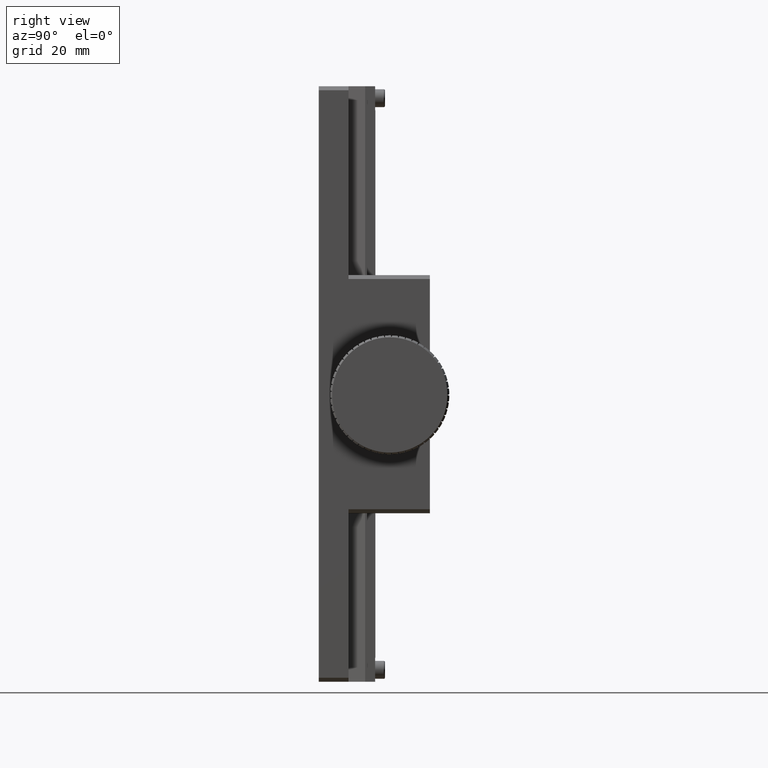
[diagram: clean part render]
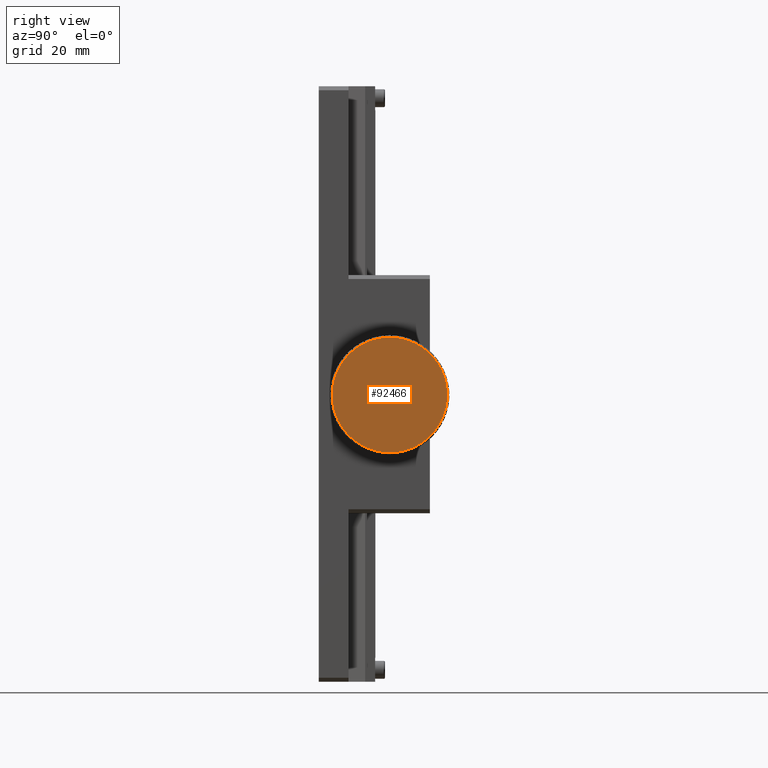
[diagram: same view with one face highlighted and labeled with its STEP entity id]
A machine part, right view. The second image highlights one B-rep face of the part: STEP entity #92466.
In plain terms, the highlighted planar face has unit normal (-1, -0, 0).
Its self-contained STEP definition (entity closure, byte-faithful):
#193 = EDGE_CURVE ( 'NONE', #52795, #45474, #45279, .T. ) ;
#510 = ORIENTED_EDGE ( 'NONE', *, *, #92651, .F. ) ;
#661 = VERTEX_POINT ( 'NONE', #71348 ) ;
#867 = CARTESIAN_POINT ( 'NONE',  ( 126.9015696099424986, 75.00408794080404107, 86.06019698115960637 ) ) ;
#907 = DIRECTION ( 'NONE',  ( 7.273874988923453722E-14, -1.000000000000000000, 0.000000000000000000 ) ) ;
#978 = CARTESIAN_POINT ( 'NONE',  ( 126.9015696099424986, 75.00408794080404107, 86.06019698115960637 ) ) ;
#1144 = DIRECTION ( 'NONE',  ( 7.273874988923453722E-14, -1.000000000000000000, 0.000000000000000000 ) ) ;
#1243 = CIRCLE ( 'NONE', #74801, 14.49999999999997158 ) ;
#1318 = VERTEX_POINT ( 'NONE', #21491 ) ;
#1338 = CARTESIAN_POINT ( 'NONE',  ( 126.9015696099435075, 60.73274456056395820, 88.62510597043701921 ) ) ;
#1516 = CIRCLE ( 'NONE', #48818, 14.49999999999997158 ) ;
#1670 = EDGE_CURVE ( 'NONE', #61378, #48436, #64917, .T. ) ;
#1704 = CIRCLE ( 'NONE', #58854, 14.49999999999997158 ) ;
#1720 = CIRCLE ( 'NONE', #14793, 14.49999999999997158 ) ;
#2405 = ORIENTED_EDGE ( 'NONE', *, *, #193, .F. ) ;
#2424 = VERTEX_POINT ( 'NONE', #4015 ) ;
#2754 = CARTESIAN_POINT ( 'NONE',  ( 126.9015696099424986, 75.00408794080404107, 86.06019698115960637 ) ) ;
#3019 = VERTEX_POINT ( 'NONE', #18303 ) ;
#3436 = ORIENTED_EDGE ( 'NONE', *, *, #40751, .F. ) ;
#3703 = DIRECTION ( 'NONE',  ( 7.273874988923453722E-14, -1.000000000000000000, 0.000000000000000000 ) ) ;
#4015 = CARTESIAN_POINT ( 'NONE',  ( 126.9015696099434507, 61.73447649078026700, 80.21490725648408215 ) ) ;
#4052 = DIRECTION ( 'NONE',  ( -1.000000000000000000, -7.352900312643177199E-14, -8.006336293077123270E-16 ) ) ;
#4778 = EDGE_CURVE ( 'NONE', #97226, #7969, #1243, .T. ) ;
#5010 = CIRCLE ( 'NONE', #73636, 14.49999999999997158 ) ;
#5792 = CARTESIAN_POINT ( 'NONE',  ( 126.9015696099424986, 75.00408794080404107, 86.06019698115960637 ) ) ;
#5985 = CARTESIAN_POINT ( 'NONE',  ( 126.9015696099415038, 88.59667302724882632, 91.10912069495819310 ) ) ;
#6388 = EDGE_CURVE ( 'NONE', #1318, #31271, #40537, .T. ) ;
#6516 = DIRECTION ( 'NONE',  ( -1.000000000000000000, -7.352900312643177199E-14, -8.006336293077123270E-16 ) ) ;
#6702 = DIRECTION ( 'NONE',  ( 7.273874988923453722E-14, -1.000000000000000000, 0.000000000000000000 ) ) ;
#6707 = VERTEX_POINT ( 'NONE', #11895 ) ;
#6991 = VERTEX_POINT ( 'NONE', #80958 ) ;
#7065 = VERTEX_POINT ( 'NONE', #16805 ) ;
#7330 = VERTEX_POINT ( 'NONE', #40332 ) ;
#7509 = CARTESIAN_POINT ( 'NONE',  ( 126.9015696099430670, 67.26364896031455487, 73.79905493038317843 ) ) ;
#7656 = DIRECTION ( 'NONE',  ( 7.273874988923453722E-14, -1.000000000000000000, 0.000000000000000000 ) ) ;
#7842 = ORIENTED_EDGE ( 'NONE', *, *, #67165, .F. ) ;
#7909 = CIRCLE ( 'NONE', #70002, 14.49999999999997158 ) ;
#7969 = VERTEX_POINT ( 'NONE', #95056 ) ;
#8281 = CARTESIAN_POINT ( 'NONE',  ( 126.9015696099414754, 88.59667302724875526, 81.01127326736082068 ) ) ;
#8737 = VERTEX_POINT ( 'NONE', #38182 ) ;
#8753 = CARTESIAN_POINT ( 'NONE',  ( 126.9015696099424986, 75.00408794080404107, 86.06019698115960637 ) ) ;
#8937 = DIRECTION ( 'NONE',  ( -1.000000000000000000, -7.352900312643177199E-14, -8.006336293077123270E-16 ) ) ;
#9279 = DIRECTION ( 'NONE',  ( -1.000000000000000000, -7.352900312643177199E-14, -8.006336293077123270E-16 ) ) ;
#9822 = DIRECTION ( 'NONE',  ( 7.273874988923453722E-14, -1.000000000000000000, 0.000000000000000000 ) ) ;
#9997 = VERTEX_POINT ( 'NONE', #19188 ) ;
#10054 = AXIS2_PLACEMENT_3D ( 'NONE', #34337, #72708, #9822 ) ;
#10268 = ORIENTED_EDGE ( 'NONE', *, *, #79614, .F. ) ;
#10315 = CARTESIAN_POINT ( 'NONE',  ( 126.9015696099424986, 75.00408794080404107, 86.06019698115960637 ) ) ;
#11147 = AXIS2_PLACEMENT_3D ( 'NONE', #35404, #98319, #99821 ) ;
#11201 = CIRCLE ( 'NONE', #25876, 14.49999999999997158 ) ;
#11298 = CIRCLE ( 'NONE', #97884, 14.49999999999997158 ) ;
#11606 = ORIENTED_EDGE ( 'NONE', *, *, #42304, .F. ) ;
#11895 = CARTESIAN_POINT ( 'NONE',  ( 126.9015696099420580, 80.45358788146064910, 99.49719628892108858 ) ) ;
#11950 = EDGE_CURVE ( 'NONE', #2424, #65854, #61911, .T. ) ;
#11973 = DIRECTION ( 'NONE',  ( 7.273874988923453722E-14, -1.000000000000000000, 0.000000000000000000 ) ) ;
#12282 = VERTEX_POINT ( 'NONE', #34123 ) ;
#12550 = VERTEX_POINT ( 'NONE', #49477 ) ;
#12693 = CIRCLE ( 'NONE', #58439, 14.49999999999997158 ) ;
#13099 = CIRCLE ( 'NONE', #49027, 14.49999999999997158 ) ;
#13114 = CIRCLE ( 'NONE', #19598, 14.49999999999997158 ) ;
#13170 = VERTEX_POINT ( 'NONE', #44332 ) ;
#13204 = CARTESIAN_POINT ( 'NONE',  ( 126.9015696099429249, 68.76814250779445103, 72.96962844665638670 ) ) ;
#13733 = CARTESIAN_POINT ( 'NONE',  ( 126.9015696099424986, 75.00408794080404107, 86.06019698115960637 ) ) ;
#14032 = EDGE_LOOP ( 'NONE', ( #48640, #42822, #32281, #41952, #89766, #48990, #24390, #92745, #7842, #60675, #33118, #14178, #67562, #56789, #60704, #20184, #27661, #36646, #55384, #92422, #26438, #100431, #97297, #65824, #64467, #95186, #91907, #45214, #80987, #37907, #98932, #77314, #98589, #64303, #42473, #89646, #3436, #96733, #46701, #510, #23189, #94944, #85976, #64125, #42848, #2405, #10268, #19664, #90590, #54129, #11606, #14858, #42799 ) ) ;
#14178 = ORIENTED_EDGE ( 'NONE', *, *, #65213, .F. ) ;
#14420 = AXIS2_PLACEMENT_3D ( 'NONE', #18939, #32805, #33302 ) ;
#14707 = AXIS2_PLACEMENT_3D ( 'NONE', #34489, #66685, #11973 ) ;
#14773 = AXIS2_PLACEMENT_3D ( 'NONE', #80539, #59022, #90229 ) ;
#14793 = AXIS2_PLACEMENT_3D ( 'NONE', #38715, #93449, #99106 ) ;
#14858 = ORIENTED_EDGE ( 'NONE', *, *, #97150, .F. ) ;
#15110 = DIRECTION ( 'NONE',  ( -1.000000000000000000, -7.352900312643177199E-14, -8.006336293077123270E-16 ) ) ;
#15136 = CARTESIAN_POINT ( 'NONE',  ( 126.9015696099424986, 75.00408794080404107, 86.06019698115960637 ) ) ;
#15390 = VERTEX_POINT ( 'NONE', #56483 ) ;
#15392 = EDGE_CURVE ( 'NONE', #3019, #23690, #19577, .T. ) ;
#15998 = EDGE_CURVE ( 'NONE', #13170, #59314, #58787, .T. ) ;
#16106 = CARTESIAN_POINT ( 'NONE',  ( 126.9015696099424986, 75.00408794080404107, 86.06019698115960637 ) ) ;
#16333 = EDGE_CURVE ( 'NONE', #83098, #77814, #40913, .T. ) ;
#16402 = AXIS2_PLACEMENT_3D ( 'NONE', #15136, #48342, #38144 ) ;
#16551 = EDGE_CURVE ( 'NONE', #6707, #83098, #13099, .T. ) ;
#16616 = CARTESIAN_POINT ( 'NONE',  ( 126.9015696099424986, 75.00408794080404107, 86.06019698115960637 ) ) ;
#16805 = CARTESIAN_POINT ( 'NONE',  ( 126.9015696099428112, 70.36017505979285147, 72.32396485027388167 ) ) ;
#17334 = DIRECTION ( 'NONE',  ( -1.000000000000000000, -7.352900312643177199E-14, -8.006336293077123270E-16 ) ) ;
#17603 = DIRECTION ( 'NONE',  ( -1.000000000000000000, -7.352900312643177199E-14, -8.006336293077123270E-16 ) ) ;
#17610 = CARTESIAN_POINT ( 'NONE',  ( 126.9015696099424986, 75.00408794080404107, 86.06019698115960637 ) ) ;
#17795 = AXIS2_PLACEMENT_3D ( 'NONE', #37699, #30022, #18605 ) ;
#17945 = CIRCLE ( 'NONE', #75065, 14.49999999999997158 ) ;
#17947 = CARTESIAN_POINT ( 'NONE',  ( 126.9015696099424986, 75.00408794080404107, 86.06019698115960637 ) ) ;
#18204 = CARTESIAN_POINT ( 'NONE',  ( 126.9015696099424986, 75.00408794080404107, 86.06019698115960637 ) ) ;
#18303 = CARTESIAN_POINT ( 'NONE',  ( 126.9015696099433086, 63.47869854031039694, 77.26159486679010513 ) ) ;
#18310 = EDGE_CURVE ( 'NONE', #70768, #85833, #37603, .T. ) ;
#18605 = DIRECTION ( 'NONE',  ( 7.273874988923453722E-14, -1.000000000000000000, 0.000000000000000000 ) ) ;
#18720 = EDGE_CURVE ( 'NONE', #6991, #30249, #1704, .T. ) ;
#18939 = CARTESIAN_POINT ( 'NONE',  ( 126.9015696099424986, 75.00408794080404107, 86.06019698115960637 ) ) ;
#19031 = CARTESIAN_POINT ( 'NONE',  ( 126.9015696099424986, 75.00408794080404107, 86.06019698115960637 ) ) ;
#19188 = CARTESIAN_POINT ( 'NONE',  ( 126.9015696099413901, 89.50408794080401265, 86.06019698115960637 ) ) ;
#19342 = CARTESIAN_POINT ( 'NONE',  ( 126.9015696099423138, 77.14496311883998203, 71.71911426498826359 ) ) ;
#19365 = AXIS2_PLACEMENT_3D ( 'NONE', #40669, #95384, #42684 ) ;
#19474 = DIRECTION ( 'NONE',  ( -1.000000000000000000, -7.352900312643177199E-14, -8.006336293077123270E-16 ) ) ;
#19577 = CIRCLE ( 'NONE', #86543, 14.49999999999997158 ) ;
#19598 = AXIS2_PLACEMENT_3D ( 'NONE', #50102, #71643, #32773 ) ;
#19664 = ORIENTED_EDGE ( 'NONE', *, *, #15998, .F. ) ;
#20079 = CARTESIAN_POINT ( 'NONE',  ( 126.9015696099424986, 75.00408794080404107, 86.06019698115960637 ) ) ;
#20133 = EDGE_CURVE ( 'NONE', #50634, #9997, #78282, .T. ) ;
#20184 = ORIENTED_EDGE ( 'NONE', *, *, #93495, .F. ) ;
#20683 = VERTEX_POINT ( 'NONE', #43043 ) ;
#21491 = CARTESIAN_POINT ( 'NONE',  ( 126.9015696099435360, 60.52955383022141689, 86.91918608561854853 ) ) ;
#21629 = CARTESIAN_POINT ( 'NONE',  ( 126.9015696099415891, 87.03047037983192524, 77.95981887700665425 ) ) ;
#21886 = DIRECTION ( 'NONE',  ( -1.000000000000000000, -7.352900312643177199E-14, -8.006336293077123270E-16 ) ) ;
#22467 = DIRECTION ( 'NONE',  ( 7.273874988923453722E-14, -1.000000000000000000, 0.000000000000000000 ) ) ;
#22542 = DIRECTION ( 'NONE',  ( -1.000000000000000000, -7.352900312643177199E-14, -8.006336293077123270E-16 ) ) ;
#22652 = CIRCLE ( 'NONE', #37338, 14.49999999999997158 ) ;
#23060 = DIRECTION ( 'NONE',  ( -1.000000000000000000, -7.352900312643177199E-14, -8.006336293077123270E-16 ) ) ;
#23081 = DIRECTION ( 'NONE',  ( 7.273874988923453722E-14, -1.000000000000000000, 0.000000000000000000 ) ) ;
#23189 = ORIENTED_EDGE ( 'NONE', *, *, #76497, .F. ) ;
#23690 = VERTEX_POINT ( 'NONE', #95729 ) ;
#23991 = CARTESIAN_POINT ( 'NONE',  ( 126.9015696099418449, 83.45729038796400800, 97.84125671224184373 ) ) ;
#24390 = ORIENTED_EDGE ( 'NONE', *, *, #61987, .F. ) ;
#24527 = CARTESIAN_POINT ( 'NONE',  ( 126.9015696099424986, 75.00408794080404107, 86.06019698115960637 ) ) ;
#24548 = AXIS2_PLACEMENT_3D ( 'NONE', #61737, #60742, #91947 ) ;
#24689 = CIRCLE ( 'NONE', #10054, 14.49999999999997158 ) ;
#25067 = DIRECTION ( 'NONE',  ( -1.000000000000000000, -7.352900312643177199E-14, -8.006336293077123270E-16 ) ) ;
#25134 = EDGE_CURVE ( 'NONE', #38671, #13170, #37517, .T. ) ;
#25250 = EDGE_CURVE ( 'NONE', #12282, #7065, #62048, .T. ) ;
#25411 = AXIS2_PLACEMENT_3D ( 'NONE', #867, #38222, #94452 ) ;
#25502 = DIRECTION ( 'NONE',  ( 7.273874988923453722E-14, -1.000000000000000000, 0.000000000000000000 ) ) ;
#25571 = DIRECTION ( 'NONE',  ( 7.273874988923453722E-14, -1.000000000000000000, 0.000000000000000000 ) ) ;
#25876 = AXIS2_PLACEMENT_3D ( 'NONE', #18204, #96934, #72929 ) ;
#25970 = CIRCLE ( 'NONE', #71708, 14.49999999999997158 ) ;
#26030 = AXIS2_PLACEMENT_3D ( 'NONE', #29417, #49557, #42890 ) ;
#26100 = CARTESIAN_POINT ( 'NONE',  ( 126.9015696099424986, 75.00408794080404107, 86.06019698115960637 ) ) ;
#26438 = ORIENTED_EDGE ( 'NONE', *, *, #100206, .F. ) ;
#26516 = CARTESIAN_POINT ( 'NONE',  ( 126.9015696099424986, 75.00408794080404107, 86.06019698115960637 ) ) ;
#26706 = DIRECTION ( 'NONE',  ( -1.000000000000000000, -7.352900312643177199E-14, -8.006336293077123270E-16 ) ) ;
#26834 = VERTEX_POINT ( 'NONE', #59566 ) ;
#26962 = DIRECTION ( 'NONE',  ( 7.273874988923453722E-14, -1.000000000000000000, 0.000000000000000000 ) ) ;
#27502 = CARTESIAN_POINT ( 'NONE',  ( 126.9015696099432233, 64.60023271366122799, 75.96020705974622445 ) ) ;
#27661 = ORIENTED_EDGE ( 'NONE', *, *, #29664, .F. ) ;
#27702 = CIRCLE ( 'NONE', #60500, 14.49999999999997158 ) ;
#27848 = DIRECTION ( 'NONE',  ( -1.000000000000000000, -7.352900312643177199E-14, -8.006336293077123270E-16 ) ) ;
#28389 = EDGE_CURVE ( 'NONE', #63061, #49968, #55218, .T. ) ;
#28420 = DIRECTION ( 'NONE',  ( -1.000000000000000000, -7.352900312643177199E-14, -8.006336293077123270E-16 ) ) ;
#28581 = CARTESIAN_POINT ( 'NONE',  ( 126.9015696099416459, 85.98800095214762962, 95.52611769492202143 ) ) ;
#28776 = AXIS2_PLACEMENT_3D ( 'NONE', #13733, #21886, #59263 ) ;
#28954 = EDGE_CURVE ( 'NONE', #20683, #54604, #73203, .T. ) ;
#29094 = AXIS2_PLACEMENT_3D ( 'NONE', #8753, #93160, #23081 ) ;
#29157 = CARTESIAN_POINT ( 'NONE',  ( 126.9015696099417880, 84.79134146281820961, 96.75877952726449394 ) ) ;
#29417 = CARTESIAN_POINT ( 'NONE',  ( 126.9015696099424702, 75.00408794080402686, 86.06019698115960637 ) ) ;
#29629 = EDGE_CURVE ( 'NONE', #8737, #50634, #89553, .T. ) ;
#29664 = EDGE_CURVE ( 'NONE', #42311, #100860, #53558, .T. ) ;
#30022 = DIRECTION ( 'NONE',  ( -1.000000000000000000, -7.352900312643177199E-14, -8.006336293077123270E-16 ) ) ;
#30249 = VERTEX_POINT ( 'NONE', #5985 ) ;
#30843 = CARTESIAN_POINT ( 'NONE',  ( 126.9015696099419159, 82.00457488039997145, 98.75835364299622654 ) ) ;
#31046 = AXIS2_PLACEMENT_3D ( 'NONE', #24527, #49087, #56235 ) ;
#31271 = VERTEX_POINT ( 'NONE', #1338 ) ;
#31498 = EDGE_CURVE ( 'NONE', #9997, #60272, #11201, .T. ) ;
#31835 = CARTESIAN_POINT ( 'NONE',  ( 126.9015696099428112, 70.36017505979305042, 99.79642911204538791 ) ) ;
#32281 = ORIENTED_EDGE ( 'NONE', *, *, #29629, .F. ) ;
#32773 = DIRECTION ( 'NONE',  ( 7.273874988923453722E-14, -1.000000000000000000, 0.000000000000000000 ) ) ;
#32805 = DIRECTION ( 'NONE',  ( -1.000000000000000000, -7.352900312643177199E-14, -8.006336293077123270E-16 ) ) ;
#32822 = CARTESIAN_POINT ( 'NONE',  ( 126.9015696099424986, 75.00408794080404107, 86.06019698115960637 ) ) ;
#32896 = CARTESIAN_POINT ( 'NONE',  ( 126.9015696099418449, 83.45729038796385169, 74.27913725007722689 ) ) ;
#33118 = ORIENTED_EDGE ( 'NONE', *, *, #16551, .F. ) ;
#33224 = CARTESIAN_POINT ( 'NONE',  ( 126.9015696099424986, 75.00408794080404107, 86.06019698115960637 ) ) ;
#33273 = CARTESIAN_POINT ( 'NONE',  ( 126.9015696099424986, 75.00408794080404107, 86.06019698115960637 ) ) ;
#33302 = DIRECTION ( 'NONE',  ( 7.273874988923453722E-14, -1.000000000000000000, 0.000000000000000000 ) ) ;
#33470 = CARTESIAN_POINT ( 'NONE',  ( 126.9015696099435075, 61.13627366879446612, 81.82537380692355100 ) ) ;
#34123 = CARTESIAN_POINT ( 'NONE',  ( 126.9015696099426691, 72.01739796905806656, 71.87112784281681854 ) ) ;
#34258 = CARTESIAN_POINT ( 'NONE',  ( 126.9015696099424986, 75.00408794080404107, 86.06019698115960637 ) ) ;
#34337 = CARTESIAN_POINT ( 'NONE',  ( 126.9015696099424986, 75.00408794080404107, 86.06019698115960637 ) ) ;
#34399 = VERTEX_POINT ( 'NONE', #84604 ) ;
#34489 = CARTESIAN_POINT ( 'NONE',  ( 126.9015696099424986, 75.00408794080404107, 86.06019698115960637 ) ) ;
#34859 = CARTESIAN_POINT ( 'NONE',  ( 126.9015696099424986, 75.00408794080404107, 86.06019698115960637 ) ) ;
#34978 = EDGE_CURVE ( 'NONE', #45474, #82696, #61636, .T. ) ;
#35404 = CARTESIAN_POINT ( 'NONE',  ( 126.9015696099424986, 75.00408794080404107, 86.06019698115960637 ) ) ;
#35609 = DIRECTION ( 'NONE',  ( -1.000000000000000000, -7.352900312643177199E-14, -8.006336293077123270E-16 ) ) ;
#35981 = AXIS2_PLACEMENT_3D ( 'NONE', #73072, #17334, #25502 ) ;
#36317 = EDGE_CURVE ( 'NONE', #31271, #38269, #37199, .T. ) ;
#36525 = EDGE_CURVE ( 'NONE', #85833, #7330, #74608, .T. ) ;
#36646 = ORIENTED_EDGE ( 'NONE', *, *, #61469, .F. ) ;
#36818 = AXIS2_PLACEMENT_3D ( 'NONE', #10315, #19474, #41506 ) ;
#36974 = CARTESIAN_POINT ( 'NONE',  ( 126.9015696099434791, 61.13627366879453717, 90.29502015539586068 ) ) ;
#36991 = DIRECTION ( 'NONE',  ( -1.000000000000000000, -7.352900312643177199E-14, -8.006336293077123270E-16 ) ) ;
#37199 = CIRCLE ( 'NONE', #50258, 14.49999999999997158 ) ;
#37210 = CARTESIAN_POINT ( 'NONE',  ( 126.9015696099424986, 75.00408794080404107, 86.06019698115960637 ) ) ;
#37338 = AXIS2_PLACEMENT_3D ( 'NONE', #40639, #17603, #87695 ) ;
#37350 = CARTESIAN_POINT ( 'NONE',  ( 126.9015696099424986, 75.00408794080404107, 86.06019698115960637 ) ) ;
#37517 = CIRCLE ( 'NONE', #50598, 14.49999999999997158 ) ;
#37603 = CIRCLE ( 'NONE', #66979, 14.49999999999997158 ) ;
#37699 = CARTESIAN_POINT ( 'NONE',  ( 126.9015696099424986, 75.00408794080404107, 86.06019698115960637 ) ) ;
#37862 = DIRECTION ( 'NONE',  ( -1.000000000000000000, -7.352900312643177199E-14, -8.006336293077123270E-16 ) ) ;
#37907 = ORIENTED_EDGE ( 'NONE', *, *, #84102, .F. ) ;
#38144 = DIRECTION ( 'NONE',  ( 7.273874988923453722E-14, -1.000000000000000000, 0.000000000000000000 ) ) ;
#38182 = CARTESIAN_POINT ( 'NONE',  ( 126.9015696099414185, 89.09842019497001786, 89.46604464498366838 ) ) ;
#38222 = DIRECTION ( 'NONE',  ( -1.000000000000000000, -7.352900312643177199E-14, -8.006336293077123270E-16 ) ) ;
#38269 = VERTEX_POINT ( 'NONE', #36974 ) ;
#38633 = CARTESIAN_POINT ( 'NONE',  ( 126.9015696099413901, 89.40231383300003642, 87.77515795951921973 ) ) ;
#38671 = VERTEX_POINT ( 'NONE', #21629 ) ;
#38715 = CARTESIAN_POINT ( 'NONE',  ( 126.9015696099424986, 75.00408794080404107, 86.06019698115960637 ) ) ;
#39247 = AXIS2_PLACEMENT_3D ( 'NONE', #33273, #25067, #25571 ) ;
#39591 = EDGE_CURVE ( 'NONE', #83704, #96450, #77938, .T. ) ;
#40332 = CARTESIAN_POINT ( 'NONE',  ( 126.9015696099429249, 68.76814250779464999, 99.15076551566291130 ) ) ;
#40537 = CIRCLE ( 'NONE', #81420, 14.49999999999997158 ) ;
#40639 = CARTESIAN_POINT ( 'NONE',  ( 126.9015696099424986, 75.00408794080404107, 86.06019698115960637 ) ) ;
#40669 = CARTESIAN_POINT ( 'NONE',  ( 126.9015696099424986, 75.00408794080404107, 86.06019698115960637 ) ) ;
#40751 = EDGE_CURVE ( 'NONE', #89668, #61540, #55075, .T. ) ;
#40913 = CIRCLE ( 'NONE', #14773, 14.49999999999997158 ) ;
#40961 = CARTESIAN_POINT ( 'NONE',  ( 126.9015696099423991, 75.43377119423132626, 100.5538291105370945 ) ) ;
#41506 = DIRECTION ( 'NONE',  ( 7.273874988923453722E-14, -1.000000000000000000, 0.000000000000000000 ) ) ;
#41563 = DIRECTION ( 'NONE',  ( -1.000000000000000000, -7.352900312643177199E-14, -8.006336293077123270E-16 ) ) ;
#41952 = ORIENTED_EDGE ( 'NONE', *, *, #50181, .F. ) ;
#42176 = CARTESIAN_POINT ( 'NONE',  ( 126.9015696099434791, 61.73447649078035937, 91.90548670583528690 ) ) ;
#42199 = DIRECTION ( 'NONE',  ( 7.273874988923453722E-14, -1.000000000000000000, 0.000000000000000000 ) ) ;
#42304 = EDGE_CURVE ( 'NONE', #76084, #52914, #12693, .T. ) ;
#42311 = VERTEX_POINT ( 'NONE', #31835 ) ;
#42331 = AXIS2_PLACEMENT_3D ( 'NONE', #67807, #28420, #59627 ) ;
#42473 = ORIENTED_EDGE ( 'NONE', *, *, #54083, .F. ) ;
#42684 = DIRECTION ( 'NONE',  ( 7.273874988923453722E-14, -1.000000000000000000, 0.000000000000000000 ) ) ;
#42799 = ORIENTED_EDGE ( 'NONE', *, *, #48293, .F. ) ;
#42822 = ORIENTED_EDGE ( 'NONE', *, *, #20133, .F. ) ;
#42848 = ORIENTED_EDGE ( 'NONE', *, *, #34978, .F. ) ;
#42890 = DIRECTION ( 'NONE',  ( 7.255693219817081362E-14, -1.000000000000000000, 0.000000000000000000 ) ) ;
#43043 = CARTESIAN_POINT ( 'NONE',  ( 126.9015696099425554, 73.71654745862164759, 100.5029196990802376 ) ) ;
#43599 = VERTEX_POINT ( 'NONE', #55535 ) ;
#43617 = DIRECTION ( 'NONE',  ( -1.000000000000000000, -7.352900312643177199E-14, -8.006336293077123270E-16 ) ) ;
#43681 = AXIS2_PLACEMENT_3D ( 'NONE', #16106, #53973, #93838 ) ;
#44133 = DIRECTION ( 'NONE',  ( 7.273874988923453722E-14, -1.000000000000000000, 0.000000000000000000 ) ) ;
#44332 = CARTESIAN_POINT ( 'NONE',  ( 126.9015696099417028, 85.98800095214750172, 76.59427626739704920 ) ) ;
#44891 = DIRECTION ( 'NONE',  ( 7.273874988923453722E-14, -1.000000000000000000, 0.000000000000000000 ) ) ;
#45214 = ORIENTED_EDGE ( 'NONE', *, *, #85732, .F. ) ;
#45279 = CIRCLE ( 'NONE', #43681, 14.49999999999997158 ) ;
#45474 = VERTEX_POINT ( 'NONE', #57202 ) ;
#46125 = CARTESIAN_POINT ( 'NONE',  ( 126.9015696099424986, 75.00408794080404107, 86.06019698115960637 ) ) ;
#46598 = CIRCLE ( 'NONE', #36818, 14.49999999999997158 ) ;
#46701 = ORIENTED_EDGE ( 'NONE', *, *, #25250, .F. ) ;
#47277 = DIRECTION ( 'NONE',  ( 7.273874988923453722E-14, -1.000000000000000000, 0.000000000000000000 ) ) ;
#47552 = DIRECTION ( 'NONE',  ( -1.000000000000000000, -7.352900312643177199E-14, -8.006336293077123270E-16 ) ) ;
#48293 = EDGE_CURVE ( 'NONE', #60272, #661, #24689, .T. ) ;
#48342 = DIRECTION ( 'NONE',  ( -1.000000000000000000, -7.352900312643177199E-14, -8.006336293077123270E-16 ) ) ;
#48436 = VERTEX_POINT ( 'NONE', #56336 ) ;
#48640 = ORIENTED_EDGE ( 'NONE', *, *, #31498, .F. ) ;
#48818 = AXIS2_PLACEMENT_3D ( 'NONE', #75938, #60573, #52890 ) ;
#48990 = ORIENTED_EDGE ( 'NONE', *, *, #68551, .F. ) ;
#49027 = AXIS2_PLACEMENT_3D ( 'NONE', #5792, #36991, #69201 ) ;
#49062 = CIRCLE ( 'NONE', #16402, 14.49999999999997158 ) ;
#49087 = DIRECTION ( 'NONE',  ( -1.000000000000000000, -7.352900312643177199E-14, -8.006336293077123270E-16 ) ) ;
#49477 = CARTESIAN_POINT ( 'NONE',  ( 126.9015696099431381, 65.86781420886919136, 74.80060097174805378 ) ) ;
#49557 = DIRECTION ( 'NONE',  ( -1.000000000000000000, -7.255693219817081362E-14, 3.296481619774128591E-18 ) ) ;
#49736 = DIRECTION ( 'NONE',  ( 7.273874988923453722E-14, -1.000000000000000000, 0.000000000000000000 ) ) ;
#49968 = VERTEX_POINT ( 'NONE', #28581 ) ;
#50102 = CARTESIAN_POINT ( 'NONE',  ( 126.9015696099424986, 75.00408794080404107, 86.06019698115960637 ) ) ;
#50181 = EDGE_CURVE ( 'NONE', #30249, #8737, #73265, .T. ) ;
#50258 = AXIS2_PLACEMENT_3D ( 'NONE', #46125, #77332, #54795 ) ;
#50504 = CIRCLE ( 'NONE', #99488, 14.49999999999997158 ) ;
#50552 = FACE_OUTER_BOUND ( 'NONE', #14032, .T. ) ;
#50598 = AXIS2_PLACEMENT_3D ( 'NONE', #37350, #37862, #7656 ) ;
#50634 = VERTEX_POINT ( 'NONE', #38633 ) ;
#50651 = CIRCLE ( 'NONE', #35981, 14.49999999999997158 ) ;
#50692 = CIRCLE ( 'NONE', #24548, 14.49999999999997158 ) ;
#51021 = EDGE_CURVE ( 'NONE', #7065, #89668, #73343, .T. ) ;
#51245 = VERTEX_POINT ( 'NONE', #42176 ) ;
#51723 = AXIS2_PLACEMENT_3D ( 'NONE', #32822, #9279, #96699 ) ;
#51965 = VERTEX_POINT ( 'NONE', #91754 ) ;
#52474 = DIRECTION ( 'NONE',  ( 7.273874988923453722E-14, -1.000000000000000000, 0.000000000000000000 ) ) ;
#52795 = VERTEX_POINT ( 'NONE', #32896 ) ;
#52890 = DIRECTION ( 'NONE',  ( 7.273874988923453722E-14, -1.000000000000000000, 0.000000000000000000 ) ) ;
#52914 = VERTEX_POINT ( 'NONE', #94770 ) ;
#53558 = CIRCLE ( 'NONE', #71605, 14.49999999999997158 ) ;
#53922 = CIRCLE ( 'NONE', #70293, 14.49999999999997158 ) ;
#53973 = DIRECTION ( 'NONE',  ( -1.000000000000000000, -7.352900312643177199E-14, -8.006336293077123270E-16 ) ) ;
#54083 = EDGE_CURVE ( 'NONE', #12550, #89873, #66841, .T. ) ;
#54129 = ORIENTED_EDGE ( 'NONE', *, *, #81196, .F. ) ;
#54604 = VERTEX_POINT ( 'NONE', #40961 ) ;
#54687 = CARTESIAN_POINT ( 'NONE',  ( 126.9015696099425838, 73.71654745862143443, 71.61747426323898935 ) ) ;
#54795 = DIRECTION ( 'NONE',  ( 7.273874988923453722E-14, -1.000000000000000000, 0.000000000000000000 ) ) ;
#55075 = CIRCLE ( 'NONE', #82851, 14.49999999999997158 ) ;
#55218 = CIRCLE ( 'NONE', #11147, 14.49999999999997158 ) ;
#55357 = DIRECTION ( 'NONE',  ( -1.000000000000000000, -7.352900312643177199E-14, -8.006336293077123270E-16 ) ) ;
#55384 = ORIENTED_EDGE ( 'NONE', *, *, #36525, .F. ) ;
#55535 = CARTESIAN_POINT ( 'NONE',  ( 126.9015696099435075, 60.73274456056389425, 83.49528799188237826 ) ) ;
#55670 = CIRCLE ( 'NONE', #71973, 14.49999999999997158 ) ;
#56170 = CARTESIAN_POINT ( 'NONE',  ( 126.9015696099424986, 75.00408794080404107, 86.06019698115960637 ) ) ;
#56235 = DIRECTION ( 'NONE',  ( 7.273874988923453722E-14, -1.000000000000000000, 0.000000000000000000 ) ) ;
#56336 = CARTESIAN_POINT ( 'NONE',  ( 126.9015696099424559, 75.43377119423111310, 71.56656485178210403 ) ) ;
#56483 = CARTESIAN_POINT ( 'NONE',  ( 126.9015696099422001, 78.82610184880547877, 72.07298104348841150 ) ) ;
#56728 = DIRECTION ( 'NONE',  ( 7.273874988923453722E-14, -1.000000000000000000, 0.000000000000000000 ) ) ;
#56789 = ORIENTED_EDGE ( 'NONE', *, *, #72117, .F. ) ;
#56807 = DIRECTION ( 'NONE',  ( -1.000000000000000000, -7.352900312643177199E-14, -8.006336293077123270E-16 ) ) ;
#56842 = CARTESIAN_POINT ( 'NONE',  ( 126.9015696099422286, 78.82610184880566351, 100.0474129188307302 ) ) ;
#57146 = EDGE_CURVE ( 'NONE', #38269, #51245, #13114, .T. ) ;
#57202 = CARTESIAN_POINT ( 'NONE',  ( 126.9015696099419443, 82.00457488039978671, 73.36204031932287251 ) ) ;
#57332 = EDGE_CURVE ( 'NONE', #15390, #61378, #93112, .T. ) ;
#57808 = DIRECTION ( 'NONE',  ( 7.273874988923453722E-14, -1.000000000000000000, 0.000000000000000000 ) ) ;
#58115 = CARTESIAN_POINT ( 'NONE',  ( 126.9015696099424986, 75.00408794080404107, 86.06019698115960637 ) ) ;
#58337 = AXIS2_PLACEMENT_3D ( 'NONE', #33224, #47552, #56728 ) ;
#58439 = AXIS2_PLACEMENT_3D ( 'NONE', #87086, #55357, #1144 ) ;
#58787 = CIRCLE ( 'NONE', #14707, 14.49999999999997158 ) ;
#58854 = AXIS2_PLACEMENT_3D ( 'NONE', #91355, #15110, #52474 ) ;
#59022 = DIRECTION ( 'NONE',  ( -1.000000000000000000, -7.352900312643177199E-14, -8.006336293077123270E-16 ) ) ;
#59263 = DIRECTION ( 'NONE',  ( 7.273874988923453722E-14, -1.000000000000000000, 0.000000000000000000 ) ) ;
#59314 = VERTEX_POINT ( 'NONE', #84078 ) ;
#59566 = CARTESIAN_POINT ( 'NONE',  ( 126.9015696099435644, 60.52955383022140978, 85.20120787670083473 ) ) ;
#59627 = DIRECTION ( 'NONE',  ( 7.273874988923453722E-14, -1.000000000000000000, 0.000000000000000000 ) ) ;
#60036 = AXIS2_PLACEMENT_3D ( 'NONE', #20079, #43617, #44133 ) ;
#60272 = VERTEX_POINT ( 'NONE', #76844 ) ;
#60500 = AXIS2_PLACEMENT_3D ( 'NONE', #978, #92552, #22467 ) ;
#60573 = DIRECTION ( 'NONE',  ( -1.000000000000000000, -7.352900312643177199E-14, -8.006336293077123270E-16 ) ) ;
#60675 = ORIENTED_EDGE ( 'NONE', *, *, #16333, .F. ) ;
#60704 = ORIENTED_EDGE ( 'NONE', *, *, #28954, .F. ) ;
#60742 = DIRECTION ( 'NONE',  ( -1.000000000000000000, -7.352900312643177199E-14, -8.006336293077123270E-16 ) ) ;
#60897 = DIRECTION ( 'NONE',  ( -1.000000000000000000, -7.352900312643177199E-14, -8.006336293077123270E-16 ) ) ;
#61138 = DIRECTION ( 'NONE',  ( -1.000000000000000000, -7.352900312643177199E-14, -8.006336293077123270E-16 ) ) ;
#61378 = VERTEX_POINT ( 'NONE', #19342 ) ;
#61419 = CARTESIAN_POINT ( 'NONE',  ( 126.9015696099424986, 75.00408794080404107, 86.06019698115960637 ) ) ;
#61469 = EDGE_CURVE ( 'NONE', #7330, #42311, #5010, .T. ) ;
#61535 = CARTESIAN_POINT ( 'NONE',  ( 126.9015696099421149, 80.45358788146045015, 72.62319767339803889 ) ) ;
#61540 = VERTEX_POINT ( 'NONE', #7509 ) ;
#61563 = EDGE_CURVE ( 'NONE', #82696, #15390, #1720, .T. ) ;
#61636 = CIRCLE ( 'NONE', #60036, 14.49999999999997158 ) ;
#61638 = DIRECTION ( 'NONE',  ( 7.273874988923453722E-14, -1.000000000000000000, 0.000000000000000000 ) ) ;
#61737 = CARTESIAN_POINT ( 'NONE',  ( 126.9015696099424986, 75.00408794080404107, 86.06019698115960637 ) ) ;
#61911 = CIRCLE ( 'NONE', #65208, 14.49999999999997158 ) ;
#61987 = EDGE_CURVE ( 'NONE', #49968, #34399, #55670, .T. ) ;
#62048 = CIRCLE ( 'NONE', #31046, 14.49999999999997158 ) ;
#62098 = EDGE_CURVE ( 'NONE', #7969, #51965, #50692, .T. ) ;
#62151 = DIRECTION ( 'NONE',  ( 7.273874988923453722E-14, -1.000000000000000000, 0.000000000000000000 ) ) ;
#62250 = CARTESIAN_POINT ( 'NONE',  ( 126.9015696099424986, 75.00408794080404107, 86.06019698115960637 ) ) ;
#63061 = VERTEX_POINT ( 'NONE', #29157 ) ;
#63694 = CARTESIAN_POINT ( 'NONE',  ( 126.9015696099424986, 75.00408794080404107, 86.06019698115960637 ) ) ;
#63996 = DIRECTION ( 'NONE',  ( 7.273874988923453722E-14, -1.000000000000000000, 0.000000000000000000 ) ) ;
#64125 = ORIENTED_EDGE ( 'NONE', *, *, #61563, .F. ) ;
#64303 = ORIENTED_EDGE ( 'NONE', *, *, #66764, .F. ) ;
#64467 = ORIENTED_EDGE ( 'NONE', *, *, #57146, .F. ) ;
#64574 = CARTESIAN_POINT ( 'NONE',  ( 126.9015696099423138, 77.14496311884016677, 100.4012796973309349 ) ) ;
#64650 = DIRECTION ( 'NONE',  ( 7.273874988923453722E-14, -1.000000000000000000, 0.000000000000000000 ) ) ;
#64917 = CIRCLE ( 'NONE', #58337, 14.49999999999997158 ) ;
#65208 = AXIS2_PLACEMENT_3D ( 'NONE', #72506, #70991, #907 ) ;
#65213 = EDGE_CURVE ( 'NONE', #96450, #6707, #22652, .T. ) ;
#65451 = DIRECTION ( 'NONE',  ( 7.273874988923453722E-14, -1.000000000000000000, 0.000000000000000000 ) ) ;
#65824 = ORIENTED_EDGE ( 'NONE', *, *, #96968, .F. ) ;
#65854 = VERTEX_POINT ( 'NONE', #33470 ) ;
#66685 = DIRECTION ( 'NONE',  ( -1.000000000000000000, -7.352900312643177199E-14, -8.006336293077123270E-16 ) ) ;
#66764 = EDGE_CURVE ( 'NONE', #89873, #3019, #1516, .T. ) ;
#66841 = CIRCLE ( 'NONE', #73491, 14.49999999999997158 ) ;
#66979 = AXIS2_PLACEMENT_3D ( 'NONE', #58115, #35609, #89332 ) ;
#67165 = EDGE_CURVE ( 'NONE', #77814, #63061, #97882, .T. ) ;
#67248 = CARTESIAN_POINT ( 'NONE',  ( 126.9015696099424986, 75.00408794080404107, 86.06019698115960637 ) ) ;
#67562 = ORIENTED_EDGE ( 'NONE', *, *, #39591, .F. ) ;
#67807 = CARTESIAN_POINT ( 'NONE',  ( 126.9015696099424986, 75.00408794080404107, 86.06019698115960637 ) ) ;
#67915 = DIRECTION ( 'NONE',  ( 7.273874988923453722E-14, -1.000000000000000000, 0.000000000000000000 ) ) ;
#68551 = EDGE_CURVE ( 'NONE', #34399, #6991, #86422, .T. ) ;
#69201 = DIRECTION ( 'NONE',  ( 7.273874988923453722E-14, -1.000000000000000000, 0.000000000000000000 ) ) ;
#69349 = DIRECTION ( 'NONE',  ( 7.273874988923453722E-14, -1.000000000000000000, 0.000000000000000000 ) ) ;
#69607 = CARTESIAN_POINT ( 'NONE',  ( 126.9015696099430102, 67.26364896031469698, 98.32133903193613378 ) ) ;
#70002 = AXIS2_PLACEMENT_3D ( 'NONE', #61419, #22542, #84961 ) ;
#70098 = AXIS2_PLACEMENT_3D ( 'NONE', #34859, #60897, #82421 ) ;
#70184 = EDGE_CURVE ( 'NONE', #43599, #26834, #17945, .T. ) ;
#70293 = AXIS2_PLACEMENT_3D ( 'NONE', #63694, #70866, #69349 ) ;
#70768 = VERTEX_POINT ( 'NONE', #99249 ) ;
#70866 = DIRECTION ( 'NONE',  ( -1.000000000000000000, -7.352900312643177199E-14, -8.006336293077123270E-16 ) ) ;
#70991 = DIRECTION ( 'NONE',  ( -1.000000000000000000, -7.352900312643177199E-14, -8.006336293077123270E-16 ) ) ;
#71348 = CARTESIAN_POINT ( 'NONE',  ( 126.9015696099414754, 89.09842019496997523, 82.65434931733534540 ) ) ;
#71605 = AXIS2_PLACEMENT_3D ( 'NONE', #17947, #56807, #63996 ) ;
#71643 = DIRECTION ( 'NONE',  ( -1.000000000000000000, -7.352900312643177199E-14, -8.006336293077123270E-16 ) ) ;
#71708 = AXIS2_PLACEMENT_3D ( 'NONE', #19031, #41563, #49736 ) ;
#71973 = AXIS2_PLACEMENT_3D ( 'NONE', #37210, #99612, #44891 ) ;
#72117 = EDGE_CURVE ( 'NONE', #54604, #83704, #72891, .T. ) ;
#72365 = DIRECTION ( 'NONE',  ( -1.000000000000000000, -7.352900312643177199E-14, -8.006336293077123270E-16 ) ) ;
#72506 = CARTESIAN_POINT ( 'NONE',  ( 126.9015696099424986, 75.00408794080404107, 86.06019698115960637 ) ) ;
#72708 = DIRECTION ( 'NONE',  ( -1.000000000000000000, -7.352900312643177199E-14, -8.006336293077123270E-16 ) ) ;
#72891 = CIRCLE ( 'NONE', #28776, 14.49999999999997158 ) ;
#72929 = DIRECTION ( 'NONE',  ( 7.273874988923453722E-14, -1.000000000000000000, 0.000000000000000000 ) ) ;
#73072 = CARTESIAN_POINT ( 'NONE',  ( 126.9015696099424986, 75.00408794080404107, 86.06019698115960637 ) ) ;
#73203 = CIRCLE ( 'NONE', #29094, 14.49999999999997158 ) ;
#73265 = CIRCLE ( 'NONE', #91308, 14.49999999999997158 ) ;
#73343 = CIRCLE ( 'NONE', #19365, 14.49999999999997158 ) ;
#73491 = AXIS2_PLACEMENT_3D ( 'NONE', #100786, #23060, #6702 ) ;
#73595 = CIRCLE ( 'NONE', #86654, 14.49999999999997158 ) ;
#73636 = AXIS2_PLACEMENT_3D ( 'NONE', #62250, #6516, #67915 ) ;
#74100 = DIRECTION ( 'NONE',  ( -1.000000000000000000, -7.352900312643177199E-14, -8.006336293077123270E-16 ) ) ;
#74608 = CIRCLE ( 'NONE', #51723, 14.49999999999997158 ) ;
#74801 = AXIS2_PLACEMENT_3D ( 'NONE', #67248, #27848, #42199 ) ;
#75065 = AXIS2_PLACEMENT_3D ( 'NONE', #2754, #79005, #64650 ) ;
#75938 = CARTESIAN_POINT ( 'NONE',  ( 126.9015696099424986, 75.00408794080404107, 86.06019698115960637 ) ) ;
#76084 = VERTEX_POINT ( 'NONE', #8281 ) ;
#76497 = EDGE_CURVE ( 'NONE', #48436, #92150, #46598, .T. ) ;
#76844 = CARTESIAN_POINT ( 'NONE',  ( 126.9015696099413901, 89.40231383300000800, 84.34523600279980826 ) ) ;
#77314 = ORIENTED_EDGE ( 'NONE', *, *, #97733, .F. ) ;
#77332 = DIRECTION ( 'NONE',  ( -1.000000000000000000, -7.352900312643177199E-14, -8.006336293077123270E-16 ) ) ;
#77505 = DIRECTION ( 'NONE',  ( 7.273874988923453722E-14, -1.000000000000000000, 0.000000000000000000 ) ) ;
#77814 = VERTEX_POINT ( 'NONE', #23991 ) ;
#77938 = CIRCLE ( 'NONE', #89421, 14.49999999999997158 ) ;
#78282 = CIRCLE ( 'NONE', #70098, 14.49999999999997158 ) ;
#79005 = DIRECTION ( 'NONE',  ( -1.000000000000000000, -7.352900312643177199E-14, -8.006336293077123270E-16 ) ) ;
#79614 = EDGE_CURVE ( 'NONE', #59314, #52795, #98950, .T. ) ;
#79759 = CARTESIAN_POINT ( 'NONE',  ( 126.9015696099433654, 62.51895557017747507, 93.43389820157338477 ) ) ;
#80539 = CARTESIAN_POINT ( 'NONE',  ( 126.9015696099424986, 75.00408794080404107, 86.06019698115960637 ) ) ;
#80958 = CARTESIAN_POINT ( 'NONE',  ( 126.9015696099415038, 87.90411576022793838, 92.68132092336827554 ) ) ;
#80987 = ORIENTED_EDGE ( 'NONE', *, *, #70184, .F. ) ;
#81196 = EDGE_CURVE ( 'NONE', #52914, #38671, #87683, .T. ) ;
#81211 = CARTESIAN_POINT ( 'NONE',  ( 126.9015696099427259, 72.01739796905826552, 100.2492661195024084 ) ) ;
#81420 = AXIS2_PLACEMENT_3D ( 'NONE', #97289, #26706, #3703 ) ;
#82421 = DIRECTION ( 'NONE',  ( 7.273874988923453722E-14, -1.000000000000000000, 0.000000000000000000 ) ) ;
#82696 = VERTEX_POINT ( 'NONE', #61535 ) ;
#82851 = AXIS2_PLACEMENT_3D ( 'NONE', #16616, #8937, #77505 ) ;
#83098 = VERTEX_POINT ( 'NONE', #30843 ) ;
#83679 = CARTESIAN_POINT ( 'NONE',  ( 126.9015696099424986, 75.00408794080404107, 86.06019698115960637 ) ) ;
#83704 = VERTEX_POINT ( 'NONE', #64574 ) ;
#84078 = CARTESIAN_POINT ( 'NONE',  ( 126.9015696099417596, 84.79134146281805329, 75.36161443505454827 ) ) ;
#84102 = EDGE_CURVE ( 'NONE', #65854, #43599, #25970, .T. ) ;
#84604 = CARTESIAN_POINT ( 'NONE',  ( 126.9015696099415607, 87.03047037983205314, 94.16057508531238796 ) ) ;
#84961 = DIRECTION ( 'NONE',  ( 7.273874988923453722E-14, -1.000000000000000000, 0.000000000000000000 ) ) ;
#85732 = EDGE_CURVE ( 'NONE', #26834, #1318, #7909, .T. ) ;
#85833 = VERTEX_POINT ( 'NONE', #69607 ) ;
#85976 = ORIENTED_EDGE ( 'NONE', *, *, #57332, .F. ) ;
#86422 = CIRCLE ( 'NONE', #42331, 14.49999999999997158 ) ;
#86543 = AXIS2_PLACEMENT_3D ( 'NONE', #17610, #72365, #62151 ) ;
#86654 = AXIS2_PLACEMENT_3D ( 'NONE', #56170, #95051, #26962 ) ;
#87086 = CARTESIAN_POINT ( 'NONE',  ( 126.9015696099424986, 75.00408794080404107, 86.06019698115960637 ) ) ;
#87683 = CIRCLE ( 'NONE', #89294, 14.49999999999997158 ) ;
#87695 = DIRECTION ( 'NONE',  ( 7.273874988923453722E-14, -1.000000000000000000, 0.000000000000000000 ) ) ;
#89294 = AXIS2_PLACEMENT_3D ( 'NONE', #26100, #90533, #57808 ) ;
#89332 = DIRECTION ( 'NONE',  ( 7.273874988923453722E-14, -1.000000000000000000, 0.000000000000000000 ) ) ;
#89421 = AXIS2_PLACEMENT_3D ( 'NONE', #83679, #61138, #61638 ) ;
#89553 = CIRCLE ( 'NONE', #14420, 14.49999999999997158 ) ;
#89646 = ORIENTED_EDGE ( 'NONE', *, *, #97586, .F. ) ;
#89668 = VERTEX_POINT ( 'NONE', #13204 ) ;
#89766 = ORIENTED_EDGE ( 'NONE', *, *, #18720, .F. ) ;
#89873 = VERTEX_POINT ( 'NONE', #27502 ) ;
#90229 = DIRECTION ( 'NONE',  ( 7.273874988923453722E-14, -1.000000000000000000, 0.000000000000000000 ) ) ;
#90533 = DIRECTION ( 'NONE',  ( -1.000000000000000000, -7.352900312643177199E-14, -8.006336293077123270E-16 ) ) ;
#90590 = ORIENTED_EDGE ( 'NONE', *, *, #25134, .F. ) ;
#91308 = AXIS2_PLACEMENT_3D ( 'NONE', #34258, #4052, #65451 ) ;
#91355 = CARTESIAN_POINT ( 'NONE',  ( 126.9015696099424986, 75.00408794080404107, 86.06019698115960637 ) ) ;
#91754 = CARTESIAN_POINT ( 'NONE',  ( 126.9015696099431949, 64.60023271366135589, 96.16018690257313040 ) ) ;
#91907 = ORIENTED_EDGE ( 'NONE', *, *, #6388, .F. ) ;
#91947 = DIRECTION ( 'NONE',  ( 7.273874988923453722E-14, -1.000000000000000000, 0.000000000000000000 ) ) ;
#92150 = VERTEX_POINT ( 'NONE', #54687 ) ;
#92422 = ORIENTED_EDGE ( 'NONE', *, *, #18310, .F. ) ;
#92466 = ADVANCED_FACE ( 'NONE', ( #50552 ), #98980, .F. ) ;
#92552 = DIRECTION ( 'NONE',  ( -1.000000000000000000, -7.352900312643177199E-14, -8.006336293077123270E-16 ) ) ;
#92651 = EDGE_CURVE ( 'NONE', #92150, #12282, #50504, .T. ) ;
#92745 = ORIENTED_EDGE ( 'NONE', *, *, #28389, .F. ) ;
#92809 = DIRECTION ( 'NONE',  ( -1.000000000000000000, -7.352900312643177199E-14, -8.006336293077123270E-16 ) ) ;
#93112 = CIRCLE ( 'NONE', #39247, 14.49999999999997158 ) ;
#93160 = DIRECTION ( 'NONE',  ( -1.000000000000000000, -7.352900312643177199E-14, -8.006336293077123270E-16 ) ) ;
#93449 = DIRECTION ( 'NONE',  ( -1.000000000000000000, -7.352900312643177199E-14, -8.006336293077123270E-16 ) ) ;
#93495 = EDGE_CURVE ( 'NONE', #100860, #20683, #11298, .T. ) ;
#93838 = DIRECTION ( 'NONE',  ( 7.273874988923453722E-14, -1.000000000000000000, 0.000000000000000000 ) ) ;
#94306 = CARTESIAN_POINT ( 'NONE',  ( 126.9015696099424986, 75.00408794080404107, 86.06019698115960637 ) ) ;
#94452 = DIRECTION ( 'NONE',  ( 7.273874988923453722E-14, -1.000000000000000000, 0.000000000000000000 ) ) ;
#94770 = CARTESIAN_POINT ( 'NONE',  ( 126.9015696099415038, 87.90411576022785312, 79.43907303895075245 ) ) ;
#94944 = ORIENTED_EDGE ( 'NONE', *, *, #1670, .F. ) ;
#95051 = DIRECTION ( 'NONE',  ( -1.000000000000000000, -7.352900312643177199E-14, -8.006336293077123270E-16 ) ) ;
#95056 = CARTESIAN_POINT ( 'NONE',  ( 126.9015696099433086, 63.47869854031050352, 94.85879909552930656 ) ) ;
#95186 = ORIENTED_EDGE ( 'NONE', *, *, #36317, .F. ) ;
#95384 = DIRECTION ( 'NONE',  ( -1.000000000000000000, -7.352900312643177199E-14, -8.006336293077123270E-16 ) ) ;
#95729 = CARTESIAN_POINT ( 'NONE',  ( 126.9015696099434223, 62.51895557017737559, 78.68649576074598428 ) ) ;
#96450 = VERTEX_POINT ( 'NONE', #56842 ) ;
#96699 = DIRECTION ( 'NONE',  ( 7.273874988923453722E-14, -1.000000000000000000, 0.000000000000000000 ) ) ;
#96733 = ORIENTED_EDGE ( 'NONE', *, *, #51021, .F. ) ;
#96934 = DIRECTION ( 'NONE',  ( -1.000000000000000000, -7.352900312643177199E-14, -8.006336293077123270E-16 ) ) ;
#96968 = EDGE_CURVE ( 'NONE', #51245, #97226, #27702, .T. ) ;
#97150 = EDGE_CURVE ( 'NONE', #661, #76084, #50651, .T. ) ;
#97226 = VERTEX_POINT ( 'NONE', #79759 ) ;
#97289 = CARTESIAN_POINT ( 'NONE',  ( 126.9015696099424986, 75.00408794080404107, 86.06019698115960637 ) ) ;
#97297 = ORIENTED_EDGE ( 'NONE', *, *, #4778, .F. ) ;
#97586 = EDGE_CURVE ( 'NONE', #61540, #12550, #53922, .T. ) ;
#97733 = EDGE_CURVE ( 'NONE', #23690, #2424, #49062, .T. ) ;
#97882 = CIRCLE ( 'NONE', #17795, 14.49999999999997158 ) ;
#97884 = AXIS2_PLACEMENT_3D ( 'NONE', #94306, #92809, #47277 ) ;
#98319 = DIRECTION ( 'NONE',  ( -1.000000000000000000, -7.352900312643177199E-14, -8.006336293077123270E-16 ) ) ;
#98589 = ORIENTED_EDGE ( 'NONE', *, *, #15392, .F. ) ;
#98932 = ORIENTED_EDGE ( 'NONE', *, *, #11950, .F. ) ;
#98950 = CIRCLE ( 'NONE', #25411, 14.49999999999997158 ) ;
#98980 = PLANE ( 'NONE',  #26030 ) ;
#99106 = DIRECTION ( 'NONE',  ( 7.273874988923453722E-14, -1.000000000000000000, 0.000000000000000000 ) ) ;
#99249 = CARTESIAN_POINT ( 'NONE',  ( 126.9015696099431665, 65.86781420886934768, 97.31979299057128685 ) ) ;
#99481 = DIRECTION ( 'NONE',  ( 7.273874988923453722E-14, -1.000000000000000000, 0.000000000000000000 ) ) ;
#99488 = AXIS2_PLACEMENT_3D ( 'NONE', #26516, #74100, #99481 ) ;
#99612 = DIRECTION ( 'NONE',  ( -1.000000000000000000, -7.352900312643177199E-14, -8.006336293077123270E-16 ) ) ;
#99821 = DIRECTION ( 'NONE',  ( 7.273874988923453722E-14, -1.000000000000000000, 0.000000000000000000 ) ) ;
#100206 = EDGE_CURVE ( 'NONE', #51965, #70768, #73595, .T. ) ;
#100431 = ORIENTED_EDGE ( 'NONE', *, *, #62098, .F. ) ;
#100786 = CARTESIAN_POINT ( 'NONE',  ( 126.9015696099424986, 75.00408794080404107, 86.06019698115960637 ) ) ;
#100860 = VERTEX_POINT ( 'NONE', #81211 ) ;